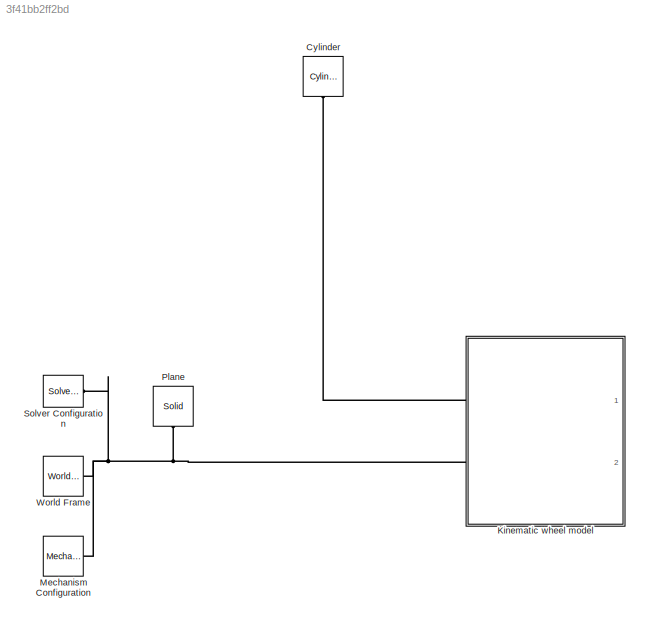
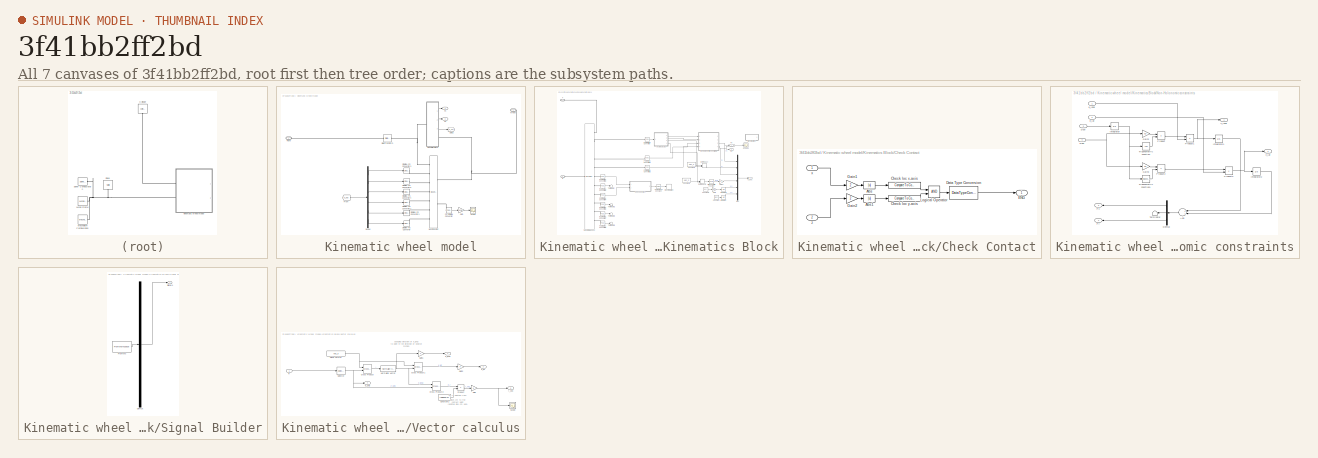
[diagram: thumbnail index - all 7 canvases of the model, root first then tree order]
MODEL slx_3f41bb2ff2bd
KIND model
CONFIG AbsTol = auto
CONFIG EnableMultiTasking = off
CONFIG FixedStep = auto
CONFIG MaxStep = auto
CONFIG MinStep = auto
CONFIG RelTol = 1e-3
CONFIG SampleTimeConstraint = Unconstrained
CONFIG Solver = VariableStepAuto
CONFIG SolverName = VariableStepAuto
CONFIG StartTime = 0.0
CONFIG StopTime = 10.0
BLOCK [Reference] Cylinder  REF=Parts_Lib/Cylinder
  Ports = [0, 0, 0, 0, 0, 1]
  SourceBlock = Parts_Lib/Cylinder
  SourceType = Solid Cylinder with Markings
  Tag = CustomStyle
BLOCK [SubSystem] Kinematic wheel model
  Ports = [0, 2, 0, 0, 0, 2]
  RequestExecContextInheritance = off
  Variant = off
BLOCK [Reference] Kinematic wheel model/Bushing Joint  REF=sm_lib/Joints/Bushing Joint
  Ports = [0, 0, 0, 0, 0, 7, 2]
  SourceBlock = sm_lib/Joints/Bushing Joint
  SourceProductBaseCode = MS
  SourceProductName = Simscape Multibody
  SourceType = Bushing Joint
BLOCK [Demux] Kinematic wheel model/Demux
  DisplayOption = bar
  Outputs = 6
  Ports = [1, 6]
BLOCK [From] Kinematic wheel model/From
  GotoTag = K_out
  TagVisibility = global
BLOCK [Gain] Kinematic wheel model/Gain
  Gain = 180/pi
  OutDataTypeStr = Inherit: Inherit via internal rule
  ParamDataTypeStr = Inherit: Inherit via internal rule
  SaturateOnIntegerOverflow = off
BLOCK [Goto] Kinematic wheel model/Goto2
  GotoTag = K_out
  TagVisibility = global
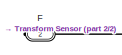
[diagram: Kinematic wheel model/Kinematics Block - part 1/2, top left region]
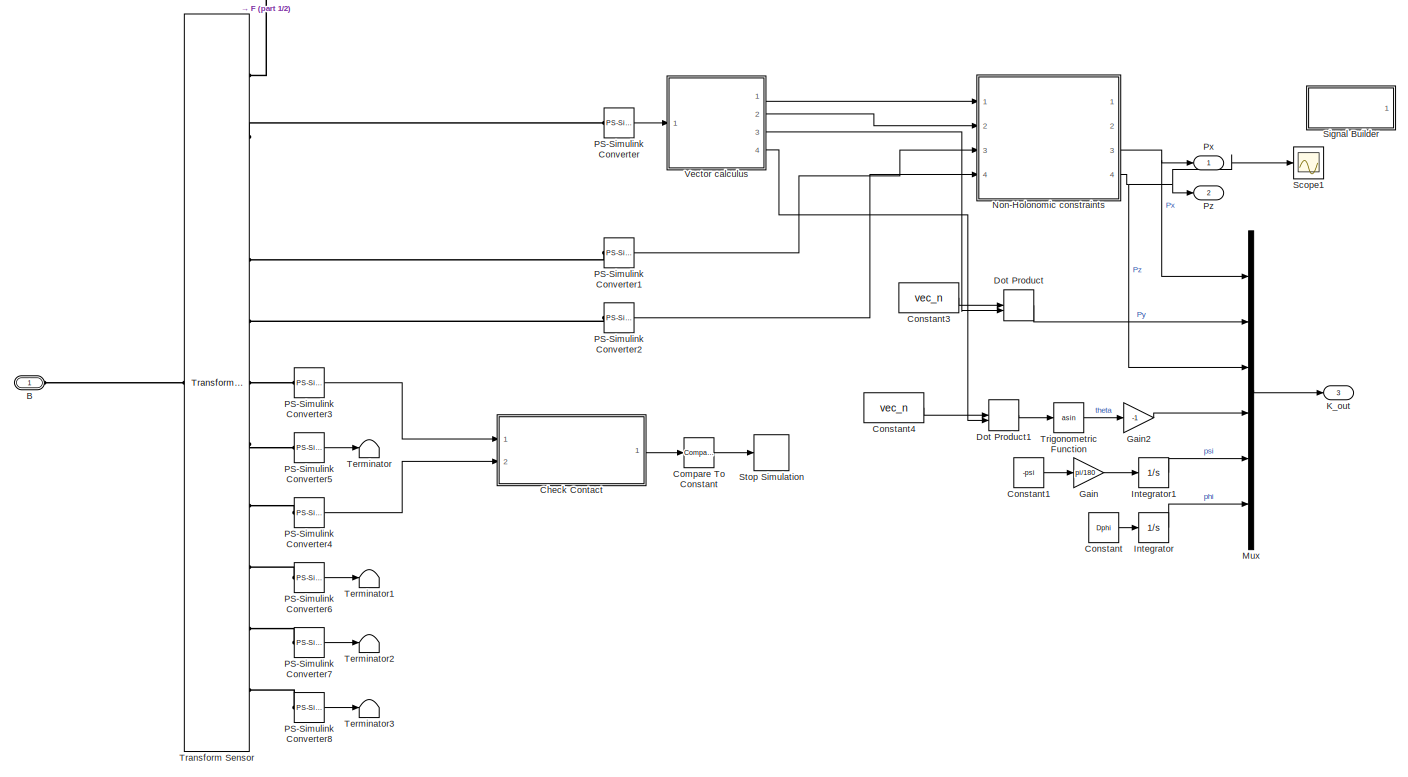
[diagram: Kinematic wheel model/Kinematics Block - part 2/2, most of the canvas]
BLOCK [SubSystem] Kinematic wheel model/Kinematics Block
  Ports = [0, 3, 0, 0, 0, 1, 1]
  RequestExecContextInheritance = off
  Variant = off
BLOCK [PMIOPort] Kinematic wheel model/Kinematics Block/B
  Port = 1
  Side = Left
BLOCK [SubSystem] Kinematic wheel model/Kinematics Block/Check Contact
  Ports = [2, 1]
  RequestExecContextInheritance = off
  Variant = off
BLOCK [Abs] Kinematic wheel model/Kinematics Block/Check Contact/Abs
  SaturateOnIntegerOverflow = off
  ZeroCross = off
BLOCK [Abs] Kinematic wheel model/Kinematics Block/Check Contact/Abs1
  SaturateOnIntegerOverflow = off
  ZeroCross = off
BLOCK [Reference] Kinematic wheel model/Kinematics Block/Check Contact/Check loc x-axis  REF=simulink/Logic and Bit
Operations/Compare
To Constant
  Ports = [1, 1]
  SourceBlock = simulink/Logic and Bit\nOperations/Compare\nTo Constant
  SourceProductBaseCode = SL
  SourceProductName = Simulink
  SourceType = Compare To Constant
BLOCK [Reference] Kinematic wheel model/Kinematics Block/Check Contact/Check loc y-axis  REF=simulink/Logic and Bit
Operations/Compare
To Constant
  Ports = [1, 1]
  SourceBlock = simulink/Logic and Bit\nOperations/Compare\nTo Constant
  SourceProductBaseCode = SL
  SourceProductName = Simulink
  SourceType = Compare To Constant
BLOCK [DataTypeConversion] Kinematic wheel model/Kinematics Block/Check Contact/Data Type Conversion
  RndMeth = Floor
  SaturateOnIntegerOverflow = off
BLOCK [Outport] Kinematic wheel model/Kinematics Block/Check Contact/ENG
  IconDisplay = Port number
BLOCK [Gain] Kinematic wheel model/Kinematics Block/Check Contact/Gain1
  Gain = 2
  OutDataTypeStr = Inherit: Inherit via internal rule
  ParamDataTypeStr = Inherit: Inherit via internal rule
  SaturateOnIntegerOverflow = off
BLOCK [Gain] Kinematic wheel model/Kinematics Block/Check Contact/Gain2
  Gain = 2
  OutDataTypeStr = Inherit: Inherit via internal rule
  ParamDataTypeStr = Inherit: Inherit via internal rule
  SaturateOnIntegerOverflow = off
BLOCK [Logic] Kinematic wheel model/Kinematics Block/Check Contact/Logical Operator
  AllPortsSameDT = off
  OutDataTypeStr = boolean
  Ports = [2, 1]
BLOCK [Inport] Kinematic wheel model/Kinematics Block/Check Contact/x
  IconDisplay = Port number
BLOCK [Inport] Kinematic wheel model/Kinematics Block/Check Contact/z
  IconDisplay = Port number
  Port = 2
BLOCK [Reference] Kinematic wheel model/Kinematics Block/Compare To Constant  REF=simulink/Logic and Bit
Operations/Compare
To Constant
  Ports = [1, 1]
  SourceBlock = simulink/Logic and Bit\nOperations/Compare\nTo Constant
  SourceProductBaseCode = SL
  SourceProductName = Simulink
  SourceType = Compare To Constant
BLOCK [Constant] Kinematic wheel model/Kinematics Block/Constant
  Value = Dphi
BLOCK [Constant] Kinematic wheel model/Kinematics Block/Constant1
  Value = -psi
BLOCK [Constant] Kinematic wheel model/Kinematics Block/Constant3
  Value = vec_n
BLOCK [Constant] Kinematic wheel model/Kinematics Block/Constant4
  Value = vec_n
BLOCK [DotProduct] Kinematic wheel model/Kinematics Block/Dot Product
  OutDataTypeStr = Inherit: Inherit via internal rule
BLOCK [DotProduct] Kinematic wheel model/Kinematics Block/Dot Product1
  OutDataTypeStr = Inherit: Inherit via internal rule
BLOCK [PMIOPort] Kinematic wheel model/Kinematics Block/F
  Port = 2
  Side = Right
BLOCK [Gain] Kinematic wheel model/Kinematics Block/Gain
  Gain = pi/180
  OutDataTypeStr = Inherit: Inherit via internal rule
  ParamDataTypeStr = Inherit: Inherit via internal rule
  SaturateOnIntegerOverflow = off
BLOCK [Gain] Kinematic wheel model/Kinematics Block/Gain2
  Gain = -1
  OutDataTypeStr = Inherit: Inherit via internal rule
  ParamDataTypeStr = Inherit: Inherit via internal rule
  SaturateOnIntegerOverflow = off
BLOCK [Integrator] Kinematic wheel model/Kinematics Block/Integrator
  Ports = [1, 1]
BLOCK [Integrator] Kinematic wheel model/Kinematics Block/Integrator1
  Ports = [1, 1]
BLOCK [Outport] Kinematic wheel model/Kinematics Block/K_out
  IconDisplay = Port number
  Port = 3
BLOCK [Mux] Kinematic wheel model/Kinematics Block/Mux
  DisplayOption = bar
  Inputs = 6
  Ports = [6, 1]
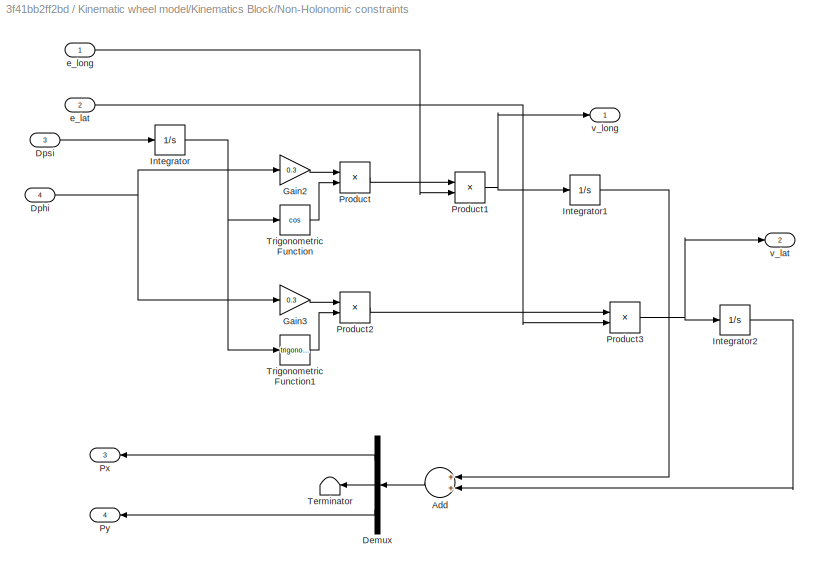
BLOCK [SubSystem] Kinematic wheel model/Kinematics Block/Non-Holonomic constraints
  Ports = [4, 4]
  RequestExecContextInheritance = off
  Variant = off
BLOCK [Sum] Kinematic wheel model/Kinematics Block/Non-Holonomic constraints/Add
  InputSameDT = off
  Inputs = 2
  OutDataTypeStr = Inherit: Inherit via internal rule
  Ports = [2, 1]
  SaturateOnIntegerOverflow = off
BLOCK [Demux] Kinematic wheel model/Kinematics Block/Non-Holonomic constraints/Demux
  DisplayOption = bar
  Outputs = 3
  Ports = [1, 3]
BLOCK [Inport] Kinematic wheel model/Kinematics Block/Non-Holonomic constraints/Dphi
  IconDisplay = Port number
  Port = 4
BLOCK [Inport] Kinematic wheel model/Kinematics Block/Non-Holonomic constraints/Dpsi
  IconDisplay = Port number
  Port = 3
BLOCK [Gain] Kinematic wheel model/Kinematics Block/Non-Holonomic constraints/Gain2
  Gain = 0.3
  OutDataTypeStr = Inherit: Inherit via internal rule
  ParamDataTypeStr = Inherit: Inherit via internal rule
  SaturateOnIntegerOverflow = off
BLOCK [Gain] Kinematic wheel model/Kinematics Block/Non-Holonomic constraints/Gain3
  Gain = 0.3
  OutDataTypeStr = Inherit: Inherit via internal rule
  ParamDataTypeStr = Inherit: Inherit via internal rule
  SaturateOnIntegerOverflow = off
BLOCK [Integrator] Kinematic wheel model/Kinematics Block/Non-Holonomic constraints/Integrator
  Ports = [1, 1]
BLOCK [Integrator] Kinematic wheel model/Kinematics Block/Non-Holonomic constraints/Integrator1
  Ports = [1, 1]
BLOCK [Integrator] Kinematic wheel model/Kinematics Block/Non-Holonomic constraints/Integrator2
  Ports = [1, 1]
BLOCK [Product] Kinematic wheel model/Kinematics Block/Non-Holonomic constraints/Product
  InputSameDT = off
  OutDataTypeStr = Inherit: Inherit via internal rule
  Ports = [2, 1]
  RndMeth = Floor
  SaturateOnIntegerOverflow = off
BLOCK [Product] Kinematic wheel model/Kinematics Block/Non-Holonomic constraints/Product1
  InputSameDT = off
  OutDataTypeStr = Inherit: Inherit via internal rule
  Ports = [2, 1]
  RndMeth = Floor
  SaturateOnIntegerOverflow = off
BLOCK [Product] Kinematic wheel model/Kinematics Block/Non-Holonomic constraints/Product2
  InputSameDT = off
  OutDataTypeStr = Inherit: Inherit via internal rule
  Ports = [2, 1]
  RndMeth = Floor
  SaturateOnIntegerOverflow = off
BLOCK [Product] Kinematic wheel model/Kinematics Block/Non-Holonomic constraints/Product3
  InputSameDT = off
  OutDataTypeStr = Inherit: Inherit via internal rule
  Ports = [2, 1]
  RndMeth = Floor
  SaturateOnIntegerOverflow = off
BLOCK [Outport] Kinematic wheel model/Kinematics Block/Non-Holonomic constraints/Px
  IconDisplay = Port number
  Port = 3
BLOCK [Outport] Kinematic wheel model/Kinematics Block/Non-Holonomic constraints/Py
  IconDisplay = Port number
  Port = 4
BLOCK [Terminator] Kinematic wheel model/Kinematics Block/Non-Holonomic constraints/Terminator
BLOCK [Trigonometry] Kinematic wheel model/Kinematics Block/Non-Holonomic constraints/Trigonometric Function
  Operator = cos
  Ports = [1, 1]
BLOCK [Trigonometry] Kinematic wheel model/Kinematics Block/Non-Holonomic constraints/Trigonometric Function1
  Ports = [1, 1]
BLOCK [Inport] Kinematic wheel model/Kinematics Block/Non-Holonomic constraints/e_lat
  IconDisplay = Port number
  Port = 2
BLOCK [Inport] Kinematic wheel model/Kinematics Block/Non-Holonomic constraints/e_long
  IconDisplay = Port number
BLOCK [Outport] Kinematic wheel model/Kinematics Block/Non-Holonomic constraints/v_lat
  IconDisplay = Port number
  Port = 2
BLOCK [Outport] Kinematic wheel model/Kinematics Block/Non-Holonomic constraints/v_long
  IconDisplay = Port number
BLOCK [Reference] Kinematic wheel model/Kinematics Block/PS-Simulink Converter  REF=nesl_utility/PS-Simulink
Converter
  Ports = [0, 1, 0, 0, 0, 1]
  SourceBlock = nesl_utility/PS-Simulink\nConverter
  SourceProductBaseCode = SS
  SourceProductName = Simscape
  SourceType = PS-Simulink\nConverter
BLOCK [Reference] Kinematic wheel model/Kinematics Block/PS-Simulink Converter1  REF=nesl_utility/PS-Simulink
Converter
  Ports = [0, 1, 0, 0, 0, 1]
  SourceBlock = nesl_utility/PS-Simulink\nConverter
  SourceProductBaseCode = SS
  SourceProductName = Simscape
  SourceType = PS-Simulink\nConverter
BLOCK [Reference] Kinematic wheel model/Kinematics Block/PS-Simulink Converter2  REF=nesl_utility/PS-Simulink
Converter
  Ports = [0, 1, 0, 0, 0, 1]
  SourceBlock = nesl_utility/PS-Simulink\nConverter
  SourceProductBaseCode = SS
  SourceProductName = Simscape
  SourceType = PS-Simulink\nConverter
BLOCK [Reference] Kinematic wheel model/Kinematics Block/PS-Simulink Converter3  REF=nesl_utility/PS-Simulink
Converter
  Ports = [0, 1, 0, 0, 0, 1]
  SourceBlock = nesl_utility/PS-Simulink\nConverter
  SourceProductBaseCode = SS
  SourceProductName = Simscape
  SourceType = PS-Simulink\nConverter
BLOCK [Reference] Kinematic wheel model/Kinematics Block/PS-Simulink Converter4  REF=nesl_utility/PS-Simulink
Converter
  Ports = [0, 1, 0, 0, 0, 1]
  SourceBlock = nesl_utility/PS-Simulink\nConverter
  SourceProductBaseCode = SS
  SourceProductName = Simscape
  SourceType = PS-Simulink\nConverter
BLOCK [Reference] Kinematic wheel model/Kinematics Block/PS-Simulink Converter5  REF=nesl_utility/PS-Simulink
Converter
  Ports = [0, 1, 0, 0, 0, 1]
  SourceBlock = nesl_utility/PS-Simulink\nConverter
  SourceProductBaseCode = SS
  SourceProductName = Simscape
  SourceType = PS-Simulink\nConverter
BLOCK [Reference] Kinematic wheel model/Kinematics Block/PS-Simulink Converter6  REF=nesl_utility/PS-Simulink
Converter
  Ports = [0, 1, 0, 0, 0, 1]
  SourceBlock = nesl_utility/PS-Simulink\nConverter
  SourceProductBaseCode = SS
  SourceProductName = Simscape
  SourceType = PS-Simulink\nConverter
BLOCK [Reference] Kinematic wheel model/Kinematics Block/PS-Simulink Converter7  REF=nesl_utility/PS-Simulink
Converter
  Ports = [0, 1, 0, 0, 0, 1]
  SourceBlock = nesl_utility/PS-Simulink\nConverter
  SourceProductBaseCode = SS
  SourceProductName = Simscape
  SourceType = PS-Simulink\nConverter
BLOCK [Reference] Kinematic wheel model/Kinematics Block/PS-Simulink Converter8  REF=nesl_utility/PS-Simulink
Converter
  Ports = [0, 1, 0, 0, 0, 1]
  SourceBlock = nesl_utility/PS-Simulink\nConverter
  SourceProductBaseCode = SS
  SourceProductName = Simscape
  SourceType = PS-Simulink\nConverter
BLOCK [Outport] Kinematic wheel model/Kinematics Block/Px
  IconDisplay = Port number
BLOCK [Outport] Kinematic wheel model/Kinematics Block/Pz
  IconDisplay = Port number
  Port = 2
BLOCK [Scope] Kinematic wheel model/Kinematics Block/Scope1
  NumInputPorts = 1
  Ports = [1]
  ScopeSpecificationString = Simulink.scopes.TimeScopeBlockCfg('CurrentConfiguration', extmgr.ConfigurationSet(extmgr.Configuration('Core','General UI',true),extmgr.Configuration('Core','Source UI',true),extmgr.Configuration('Sources','WiredSimulink',true,'DataLoggingVariableName','ScopeData3'),extmgr.Configuration('Visuals','Time Domain',true,'SerializedDisplays',{struct('MinYLimReal','-0.57595','MaxYLimReal','5.18359','YLab...<+1391ch>
BLOCK [SubSystem] Kinematic wheel model/Kinematics Block/Signal Builder
  ClipboardFcn = sigbuilder_block('clipboard');
  CloseFcn = sigbuilder_block('close');
  Commented = on
  ContinueFcn = sigbuilder_block('continue');
  CopyFcn = sigbuilder_block('copy');
  DeleteFcn = sigbuilder_block('delete');
  LoadFcn = sigbuilder_block('load');
  MaskHideContents = on
  ModelCloseFcn = sigbuilder_block('modelClose');
  NameChangeFcn = sigbuilder_block('namechange');
  OpenFcn = sigbuilder_block('open',[437.6 199.2 550.4 400 ]);
  PauseFcn = sigbuilder_block('pause');
  Ports = [0, 1]
  PreSaveFcn = sigbuilder_block('preSave');
  RequestExecContextInheritance = off
  StartFcn = sigbuilder_block('start');
  StopFcn = sigbuilder_block('stop');
  Tag = STV Subsys
  Variant = off
BLOCK [Demux] Kinematic wheel model/Kinematics Block/Signal Builder/Demux
  Outputs = 1
  Ports = [1, 1]
  Tag = STV Demux
BLOCK [FromWorkspace] Kinematic wheel model/Kinematics Block/Signal Builder/FromWs
  SampleTime = 0
  Tag = STV FromWs
  VariableName = tuvar
  ZeroCross = on
BLOCK [Outport] Kinematic wheel model/Kinematics Block/Signal Builder/Signal 1
  IconDisplay = Port number
  Tag = STV Outport
BLOCK [Stop] Kinematic wheel model/Kinematics Block/Stop Simulation
BLOCK [Terminator] Kinematic wheel model/Kinematics Block/Terminator
BLOCK [Terminator] Kinematic wheel model/Kinematics Block/Terminator1
BLOCK [Terminator] Kinematic wheel model/Kinematics Block/Terminator2
BLOCK [Terminator] Kinematic wheel model/Kinematics Block/Terminator3
BLOCK [Reference] Kinematic wheel model/Kinematics Block/Transform Sensor  REF=sm_lib/Frames and
Transforms/Transform
Sensor
  Ports = [0, 0, 0, 0, 0, 1, 11]
  SourceBlock = sm_lib/Frames and\nTransforms/Transform\nSensor
  SourceProductBaseCode = MS
  SourceProductName = Simscape Multibody
  SourceType = Transform\nSensor
BLOCK [Trigonometry] Kinematic wheel model/Kinematics Block/Trigonometric Function
  Operator = asin
  Ports = [1, 1]
BLOCK [SubSystem] Kinematic wheel model/Kinematics Block/Vector calculus
  Ports = [1, 4]
  RequestExecContextInheritance = off
  Variant = off
BLOCK [Constant] Kinematic wheel model/Kinematics Block/Vector calculus/Constant2
  Value = radiusRW
BLOCK [Reference] Kinematic wheel model/Kinematics Block/Vector calculus/Cross Product  REF=Contact_Forces_Lib/Math/Cross
Product
  Ports = [2, 1]
  SourceBlock = Contact_Forces_Lib/Math/Cross\nProduct
  SourceType = SubSystem
BLOCK [Reference] Kinematic wheel model/Kinematics Block/Vector calculus/Cross Product1  REF=Contact_Forces_Lib/Math/Cross
Product
  Ports = [2, 1]
  SourceBlock = Contact_Forces_Lib/Math/Cross\nProduct
  SourceType = SubSystem
BLOCK [Reference] Kinematic wheel model/Kinematics Block/Vector calculus/Cross Product2  REF=Contact_Forces_Lib/Math/Cross
Product
  Ports = [2, 1]
  SourceBlock = Contact_Forces_Lib/Math/Cross\nProduct
  SourceType = SubSystem
BLOCK [Gain] Kinematic wheel model/Kinematics Block/Vector calculus/Gain
  OutDataTypeStr = Inherit: Inherit via internal rule
  ParamDataTypeStr = Inherit: Inherit via internal rule
  SaturateOnIntegerOverflow = off
BLOCK [Gain] Kinematic wheel model/Kinematics Block/Vector calculus/Gain1
  Gain = -1
  OutDataTypeStr = Inherit: Inherit via internal rule
  ParamDataTypeStr = Inherit: Inherit via internal rule
  SaturateOnIntegerOverflow = off
BLOCK [Gain] Kinematic wheel model/Kinematics Block/Vector calculus/Gain2
  OutDataTypeStr = Inherit: Inherit via internal rule
  ParamDataTypeStr = Inherit: Inherit via internal rule
  SaturateOnIntegerOverflow = off
BLOCK [Reference] Kinematic wheel model/Kinematics Block/Vector calculus/Normalize Vector  REF=vrlib/Utilities/Normalize Vector
  Ports = [1, 1]
  SourceBlock = vrlib/Utilities/Normalize Vector
  SourceProductBaseCode = VR
  SourceProductName = Simulink 3D Animation
  SourceType = Normalize Vector
BLOCK [Constant] Kinematic wheel model/Kinematics Block/Vector calculus/Plane normal
  Value = vec_n
BLOCK [Product] Kinematic wheel model/Kinematics Block/Vector calculus/Product
  InputSameDT = off
  OutDataTypeStr = Inherit: Inherit via internal rule
  Ports = [2, 1]
  RndMeth = Floor
  SaturateOnIntegerOverflow = off
BLOCK [Inport] Kinematic wheel model/Kinematics Block/Vector calculus/R
  IconDisplay = Port number
BLOCK [Scope] Kinematic wheel model/Kinematics Block/Vector calculus/Scope
  NumInputPorts = 1
  Ports = [1]
  ScopeSpecificationString = Simulink.scopes.TimeScopeBlockCfg('CurrentConfiguration', extmgr.ConfigurationSet(extmgr.Configuration('Core','General UI',true),extmgr.Configuration('Core','Source UI',true),extmgr.Configuration('Sources','WiredSimulink',true,'DataLoggingVariableName','ScopeData1'),extmgr.Configuration('Visuals','Time Domain',true,'SerializedDisplays',{struct('MinYLimReal','-0.0375','MaxYLimReal','0.3375','YLabel...<+1377ch>
BLOCK [Selector] Kinematic wheel model/Kinematics Block/Vector calculus/Selector
  IndexOptions = Index vector (dialog),Index vector (dialog)
  Indices = [1:3],3
  InputPortWidth = 3
  NumberOfDimensions = 2
  OutputSizes = 1,1
  Ports = [1, 1]
BLOCK [Outport] Kinematic wheel model/Kinematics Block/Vector calculus/e_axis
  IconDisplay = Port number
  Port = 4
BLOCK [Outport] Kinematic wheel model/Kinematics Block/Vector calculus/e_lat
  IconDisplay = Port number
  Port = 2
BLOCK [Outport] Kinematic wheel model/Kinematics Block/Vector calculus/e_long
  IconDisplay = Port number
BLOCK [Outport] Kinematic wheel model/Kinematics Block/Vector calculus/r_vec
  IconDisplay = Port number
  Port = 3
BLOCK [Reference] Kinematic wheel model/PS-Simulink Converter  REF=nesl_utility/PS-Simulink
Converter
  Ports = [0, 1, 0, 0, 0, 1]
  SourceBlock = nesl_utility/PS-Simulink\nConverter
  SourceProductBaseCode = SS
  SourceProductName = Simscape
  SourceType = PS-Simulink\nConverter
BLOCK [PMIOPort] Kinematic wheel model/Plane
  Port = 2
  Side = Left
BLOCK [Outport] Kinematic wheel model/Px
  IconDisplay = Port number
BLOCK [Outport] Kinematic wheel model/Pz
  IconDisplay = Port number
  Port = 2
BLOCK [Reference] Kinematic wheel model/Rigid Transform  REF=sm_lib/Frames and
Transforms/Rigid
Transform
  Ports = [0, 0, 0, 0, 0, 1, 1]
  SourceBlock = sm_lib/Frames and\nTransforms/Rigid\nTransform
  SourceProductBaseCode = MS
  SourceProductName = Simscape Multibody
  SourceType = Rigid\nTransform
BLOCK [Scope] Kinematic wheel model/Scope
  NumInputPorts = 1
  Ports = [1]
  ScopeSpecificationString = Simulink.scopes.TimeScopeBlockCfg('CurrentConfiguration', extmgr.ConfigurationSet(extmgr.Configuration('Core','General UI',true),extmgr.Configuration('Core','Source UI',true),extmgr.Configuration('Sources','WiredSimulink',true,'DataLoggingVariableName','ScopeData2'),extmgr.Configuration('Visuals','Time Domain',true,'SerializedDisplays',{struct('MinYLimReal','-0.0000009','MaxYLimReal','0.0000023','...<+1408ch>
BLOCK [Reference] Kinematic wheel model/Simulink-PS Converter  REF=nesl_utility/Simulink-PS
Converter
  Ports = [1, 0, 0, 0, 0, 0, 1]
  SourceBlock = nesl_utility/Simulink-PS\nConverter
  SourceProductBaseCode = SS
  SourceProductName = Simscape
  SourceType = Simulink-PS\nConverter
BLOCK [Reference] Kinematic wheel model/Simulink-PS Converter1  REF=nesl_utility/Simulink-PS
Converter
  Ports = [1, 0, 0, 0, 0, 0, 1]
  SourceBlock = nesl_utility/Simulink-PS\nConverter
  SourceProductBaseCode = SS
  SourceProductName = Simscape
  SourceType = Simulink-PS\nConverter
BLOCK [Reference] Kinematic wheel model/Simulink-PS Converter2  REF=nesl_utility/Simulink-PS
Converter
  Ports = [1, 0, 0, 0, 0, 0, 1]
  SourceBlock = nesl_utility/Simulink-PS\nConverter
  SourceProductBaseCode = SS
  SourceProductName = Simscape
  SourceType = Simulink-PS\nConverter
BLOCK [Reference] Kinematic wheel model/Simulink-PS Converter3  REF=nesl_utility/Simulink-PS
Converter
  Ports = [1, 0, 0, 0, 0, 0, 1]
  SourceBlock = nesl_utility/Simulink-PS\nConverter
  SourceProductBaseCode = SS
  SourceProductName = Simscape
  SourceType = Simulink-PS\nConverter
BLOCK [Reference] Kinematic wheel model/Simulink-PS Converter4  REF=nesl_utility/Simulink-PS
Converter
  Ports = [1, 0, 0, 0, 0, 0, 1]
  SourceBlock = nesl_utility/Simulink-PS\nConverter
  SourceProductBaseCode = SS
  SourceProductName = Simscape
  SourceType = Simulink-PS\nConverter
BLOCK [Reference] Kinematic wheel model/Simulink-PS Converter5  REF=nesl_utility/Simulink-PS
Converter
  Ports = [1, 0, 0, 0, 0, 0, 1]
  SourceBlock = nesl_utility/Simulink-PS\nConverter
  SourceProductBaseCode = SS
  SourceProductName = Simscape
  SourceType = Simulink-PS\nConverter
BLOCK [PMIOPort] Kinematic wheel model/Wheel
  Port = 1
  Side = Left
BLOCK [Reference] Mechanism Configuration  REF=sm_lib/Utilities/Mechanism
Configuration
  Ports = [0, 0, 0, 0, 0, 0, 1]
  SourceBlock = sm_lib/Utilities/Mechanism\nConfiguration
  SourceProductBaseCode = MS
  SourceProductName = Simscape Multibody
  SourceType = Mechanism\nConfiguration
BLOCK [Reference] Plane  REF=sm_lib/Body Elements/Solid
  Ports = [0, 0, 0, 0, 0, 0, 1]
  SourceBlock = sm_lib/Body Elements/Solid
  SourceProductBaseCode = MS
  SourceProductName = Simscape Multibody
  SourceType = Solid
BLOCK [Reference] Solver Configuration  REF=nesl_utility/Solver
Configuration
  Ports = [0, 0, 0, 0, 0, 0, 1]
  SourceBlock = nesl_utility/Solver\nConfiguration
  SourceProductBaseCode = SS
  SourceProductName = Simscape
  SourceType = Solver\nConfiguration
BLOCK [Reference] World Frame  REF=sm_lib/Frames and
Transforms/World Frame
  Ports = [0, 0, 0, 0, 0, 0, 1]
  SourceBlock = sm_lib/Frames and\nTransforms/World Frame
  SourceProductBaseCode = MS
  SourceProductName = Simscape Multibody
  SourceType = World Frame
ANNOTATION Kinematic wheel model/Kinematics Block/Vector calculus: Changing direction of e_long to point in the direction of positve motion
ANNOTATION Kinematic wheel model/Kinematics Block/Vector calculus: e_r is pointing from disk's cm to the contact point (positive disk cm axis)
LINE Kinematic wheel model/Demux:1 -> Kinematic wheel model/Simulink-PS Converter3:1
LINE Kinematic wheel model/Demux:2 -> Kinematic wheel model/Simulink-PS Converter5:1
LINE Kinematic wheel model/Demux:3 -> Kinematic wheel model/Simulink-PS Converter4:1
LINE Kinematic wheel model/Demux:4 -> Kinematic wheel model/Simulink-PS Converter2:1
LINE Kinematic wheel model/Demux:5 -> Kinematic wheel model/Simulink-PS Converter1:1
LINE Kinematic wheel model/Demux:6 -> Kinematic wheel model/Simulink-PS Converter:1
LINE Kinematic wheel model/From:1 -> Kinematic wheel model/Demux:1
LINE Kinematic wheel model/Gain:1 -> Kinematic wheel model/Scope:1
LINE Kinematic wheel model/Kinematics Block/Check Contact/Abs1:1 -> Kinematic wheel model/Kinematics Block/Check Contact/Check loc y-axis:1
LINE Kinematic wheel model/Kinematics Block/Check Contact/Abs:1 -> Kinematic wheel model/Kinematics Block/Check Contact/Check loc x-axis:1
LINE Kinematic wheel model/Kinematics Block/Check Contact/Check loc x-axis:1 -> Kinematic wheel model/Kinematics Block/Check Contact/Logical Operator:1
LINE Kinematic wheel model/Kinematics Block/Check Contact/Check loc y-axis:1 -> Kinematic wheel model/Kinematics Block/Check Contact/Logical Operator:2
LINE Kinematic wheel model/Kinematics Block/Check Contact/Data Type Conversion:1 -> Kinematic wheel model/Kinematics Block/Check Contact/ENG:1
LINE Kinematic wheel model/Kinematics Block/Check Contact/Gain1:1 -> Kinematic wheel model/Kinematics Block/Check Contact/Abs:1
LINE Kinematic wheel model/Kinematics Block/Check Contact/Gain2:1 -> Kinematic wheel model/Kinematics Block/Check Contact/Abs1:1
LINE Kinematic wheel model/Kinematics Block/Check Contact/Logical Operator:1 -> Kinematic wheel model/Kinematics Block/Check Contact/Data Type Conversion:1
LINE Kinematic wheel model/Kinematics Block/Check Contact/x:1 -> Kinematic wheel model/Kinematics Block/Check Contact/Gain1:1
LINE Kinematic wheel model/Kinematics Block/Check Contact/z:1 -> Kinematic wheel model/Kinematics Block/Check Contact/Gain2:1
LINE Kinematic wheel model/Kinematics Block/Check Contact:1 -> Kinematic wheel model/Kinematics Block/Compare To Constant:1
LINE Kinematic wheel model/Kinematics Block/Compare To Constant:1 -> Kinematic wheel model/Kinematics Block/Stop Simulation:1
LINE Kinematic wheel model/Kinematics Block/Constant1:1 -> Kinematic wheel model/Kinematics Block/Gain:1
LINE Kinematic wheel model/Kinematics Block/Constant3:1 -> Kinematic wheel model/Kinematics Block/Dot Product:1
LINE Kinematic wheel model/Kinematics Block/Constant4:1 -> Kinematic wheel model/Kinematics Block/Dot Product1:1
LINE Kinematic wheel model/Kinematics Block/Constant:1 -> Kinematic wheel model/Kinematics Block/Integrator:1
LINE Kinematic wheel model/Kinematics Block/Dot Product1:1 -> Kinematic wheel model/Kinematics Block/Trigonometric Function:1
LINE Kinematic wheel model/Kinematics Block/Dot Product:1 -> Kinematic wheel model/Kinematics Block/Mux:2
LINE Kinematic wheel model/Kinematics Block/Gain2:1 -> Kinematic wheel model/Kinematics Block/Mux:4
LINE Kinematic wheel model/Kinematics Block/Gain:1 -> Kinematic wheel model/Kinematics Block/Integrator1:1
LINE Kinematic wheel model/Kinematics Block/Integrator1:1 -> Kinematic wheel model/Kinematics Block/Mux:5
LINE Kinematic wheel model/Kinematics Block/Integrator:1 -> Kinematic wheel model/Kinematics Block/Mux:6
LINE Kinematic wheel model/Kinematics Block/Mux:1 -> Kinematic wheel model/Kinematics Block/K_out:1
LINE Kinematic wheel model/Kinematics Block/Non-Holonomic constraints/Add:1 -> Kinematic wheel model/Kinematics Block/Non-Holonomic constraints/Demux:1
LINE Kinematic wheel model/Kinematics Block/Non-Holonomic constraints/Demux:1 -> Kinematic wheel model/Kinematics Block/Non-Holonomic constraints/Px:1
LINE Kinematic wheel model/Kinematics Block/Non-Holonomic constraints/Demux:2 -> Kinematic wheel model/Kinematics Block/Non-Holonomic constraints/Terminator:1
LINE Kinematic wheel model/Kinematics Block/Non-Holonomic constraints/Demux:3 -> Kinematic wheel model/Kinematics Block/Non-Holonomic constraints/Py:1
NET Kinematic wheel model/Kinematics Block/Non-Holonomic constraints/Dphi:1 -> Kinematic wheel model/Kinematics Block/Non-Holonomic constraints/Gain2:1, Kinematic wheel model/Kinematics Block/Non-Holonomic constraints/Gain3:1
LINE Kinematic wheel model/Kinematics Block/Non-Holonomic constraints/Dpsi:1 -> Kinematic wheel model/Kinematics Block/Non-Holonomic constraints/Integrator:1
LINE Kinematic wheel model/Kinematics Block/Non-Holonomic constraints/Gain2:1 -> Kinematic wheel model/Kinematics Block/Non-Holonomic constraints/Product:1
LINE Kinematic wheel model/Kinematics Block/Non-Holonomic constraints/Gain3:1 -> Kinematic wheel model/Kinematics Block/Non-Holonomic constraints/Product2:1
LINE Kinematic wheel model/Kinematics Block/Non-Holonomic constraints/Integrator1:1 -> Kinematic wheel model/Kinematics Block/Non-Holonomic constraints/Add:1
LINE Kinematic wheel model/Kinematics Block/Non-Holonomic constraints/Integrator2:1 -> Kinematic wheel model/Kinematics Block/Non-Holonomic constraints/Add:2
NET Kinematic wheel model/Kinematics Block/Non-Holonomic constraints/Integrator:1 -> Kinematic wheel model/Kinematics Block/Non-Holonomic constraints/Trigonometric Function1:1, Kinematic wheel model/Kinematics Block/Non-Holonomic constraints/Trigonometric Function:1
NET Kinematic wheel model/Kinematics Block/Non-Holonomic constraints/Product1:1 -> Kinematic wheel model/Kinematics Block/Non-Holonomic constraints/Integrator1:1, Kinematic wheel model/Kinematics Block/Non-Holonomic constraints/v_long:1
LINE Kinematic wheel model/Kinematics Block/Non-Holonomic constraints/Product2:1 -> Kinematic wheel model/Kinematics Block/Non-Holonomic constraints/Product3:1
NET Kinematic wheel model/Kinematics Block/Non-Holonomic constraints/Product3:1 -> Kinematic wheel model/Kinematics Block/Non-Holonomic constraints/Integrator2:1, Kinematic wheel model/Kinematics Block/Non-Holonomic constraints/v_lat:1
LINE Kinematic wheel model/Kinematics Block/Non-Holonomic constraints/Product:1 -> Kinematic wheel model/Kinematics Block/Non-Holonomic constraints/Product1:1
LINE Kinematic wheel model/Kinematics Block/Non-Holonomic constraints/Trigonometric Function1:1 -> Kinematic wheel model/Kinematics Block/Non-Holonomic constraints/Product2:2
LINE Kinematic wheel model/Kinematics Block/Non-Holonomic constraints/Trigonometric Function:1 -> Kinematic wheel model/Kinematics Block/Non-Holonomic constraints/Product:2
LINE Kinematic wheel model/Kinematics Block/Non-Holonomic constraints/e_lat:1 -> Kinematic wheel model/Kinematics Block/Non-Holonomic constraints/Product3:2
LINE Kinematic wheel model/Kinematics Block/Non-Holonomic constraints/e_long:1 -> Kinematic wheel model/Kinematics Block/Non-Holonomic constraints/Product1:2
NET Kinematic wheel model/Kinematics Block/Non-Holonomic constraints:3 -> Kinematic wheel model/Kinematics Block/Mux:1, Kinematic wheel model/Kinematics Block/Px:1
NET Kinematic wheel model/Kinematics Block/Non-Holonomic constraints:4 -> Kinematic wheel model/Kinematics Block/Mux:3, Kinematic wheel model/Kinematics Block/Pz:1, Kinematic wheel model/Kinematics Block/Scope1:1
LINE Kinematic wheel model/Kinematics Block/PS-Simulink Converter1:1 -> Kinematic wheel model/Kinematics Block/Non-Holonomic constraints:3
LINE Kinematic wheel model/Kinematics Block/PS-Simulink Converter2:1 -> Kinematic wheel model/Kinematics Block/Non-Holonomic constraints:4
LINE Kinematic wheel model/Kinematics Block/PS-Simulink Converter3:1 -> Kinematic wheel model/Kinematics Block/Check Contact:1
LINE Kinematic wheel model/Kinematics Block/PS-Simulink Converter4:1 -> Kinematic wheel model/Kinematics Block/Check Contact:2
LINE Kinematic wheel model/Kinematics Block/PS-Simulink Converter5:1 -> Kinematic wheel model/Kinematics Block/Terminator:1
LINE Kinematic wheel model/Kinematics Block/PS-Simulink Converter6:1 -> Kinematic wheel model/Kinematics Block/Terminator1:1
LINE Kinematic wheel model/Kinematics Block/PS-Simulink Converter7:1 -> Kinematic wheel model/Kinematics Block/Terminator2:1
LINE Kinematic wheel model/Kinematics Block/PS-Simulink Converter8:1 -> Kinematic wheel model/Kinematics Block/Terminator3:1
LINE Kinematic wheel model/Kinematics Block/PS-Simulink Converter:1 -> Kinematic wheel model/Kinematics Block/Vector calculus:1
LINE Kinematic wheel model/Kinematics Block/Trigonometric Function:1 -> Kinematic wheel model/Kinematics Block/Gain2:1
LINE Kinematic wheel model/Kinematics Block/Vector calculus/Constant2:1 -> Kinematic wheel model/Kinematics Block/Vector calculus/Product:2
LINE Kinematic wheel model/Kinematics Block/Vector calculus/Cross Product1:1 -> Kinematic wheel model/Kinematics Block/Vector calculus/Gain2:1
LINE Kinematic wheel model/Kinematics Block/Vector calculus/Cross Product2:1 -> Kinematic wheel model/Kinematics Block/Vector calculus/Product:1
LINE Kinematic wheel model/Kinematics Block/Vector calculus/Cross Product:1 -> Kinematic wheel model/Kinematics Block/Vector calculus/Normalize Vector:1
LINE Kinematic wheel model/Kinematics Block/Vector calculus/Gain1:1 -> Kinematic wheel model/Kinematics Block/Vector calculus/e_long:1
LINE Kinematic wheel model/Kinematics Block/Vector calculus/Gain2:1 -> Kinematic wheel model/Kinematics Block/Vector calculus/e_lat:1
NET Kinematic wheel model/Kinematics Block/Vector calculus/Gain:1 -> Kinematic wheel model/Kinematics Block/Vector calculus/Scope:1, Kinematic wheel model/Kinematics Block/Vector calculus/r_vec:1
NET Kinematic wheel model/Kinematics Block/Vector calculus/Normalize Vector:1 -> Kinematic wheel model/Kinematics Block/Vector calculus/Cross Product1:2, Kinematic wheel model/Kinematics Block/Vector calculus/Cross Product2:1, Kinematic wheel model/Kinematics Block/Vector calculus/Gain1:1
NET Kinematic wheel model/Kinematics Block/Vector calculus/Plane normal:1 -> Kinematic wheel model/Kinematics Block/Vector calculus/Cross Product1:1, Kinematic wheel model/Kinematics Block/Vector calculus/Cross Product:1
LINE Kinematic wheel model/Kinematics Block/Vector calculus/Product:1 -> Kinematic wheel model/Kinematics Block/Vector calculus/Gain:1
LINE Kinematic wheel model/Kinematics Block/Vector calculus/R:1 -> Kinematic wheel model/Kinematics Block/Vector calculus/Selector:1
NET Kinematic wheel model/Kinematics Block/Vector calculus/Selector:1 -> Kinematic wheel model/Kinematics Block/Vector calculus/Cross Product2:2, Kinematic wheel model/Kinematics Block/Vector calculus/Cross Product:2, Kinematic wheel model/Kinematics Block/Vector calculus/e_axis:1
LINE Kinematic wheel model/Kinematics Block/Vector calculus:1 -> Kinematic wheel model/Kinematics Block/Non-Holonomic constraints:1
LINE Kinematic wheel model/Kinematics Block/Vector calculus:2 -> Kinematic wheel model/Kinematics Block/Non-Holonomic constraints:2
LINE Kinematic wheel model/Kinematics Block/Vector calculus:3 -> Kinematic wheel model/Kinematics Block/Dot Product:2
LINE Kinematic wheel model/Kinematics Block/Vector calculus:4 -> Kinematic wheel model/Kinematics Block/Dot Product1:2
LINE Kinematic wheel model/Kinematics Block:1 -> Kinematic wheel model/Px:1
LINE Kinematic wheel model/Kinematics Block:2 -> Kinematic wheel model/Pz:1
LINE Kinematic wheel model/Kinematics Block:3 -> Kinematic wheel model/Goto2:1
LINE Kinematic wheel model/PS-Simulink Converter:1 -> Kinematic wheel model/Gain:1
PLINE Cylinder:LConn1 -- Kinematic wheel model:LConn1
PNET net1: Kinematic wheel model/Bushing Joint:LConn1 -- Kinematic wheel model/Kinematics Block:LConn1 -- Kinematic wheel model/Rigid Transform:RConn1
PLINE Kinematic wheel model/Bushing Joint:LConn2 -- Kinematic wheel model/Simulink-PS Converter3:RConn1
PLINE Kinematic wheel model/Bushing Joint:LConn3 -- Kinematic wheel model/Simulink-PS Converter5:RConn1
PLINE Kinematic wheel model/Bushing Joint:LConn4 -- Kinematic wheel model/Simulink-PS Converter4:RConn1
PLINE Kinematic wheel model/Bushing Joint:LConn5 -- Kinematic wheel model/Simulink-PS Converter2:RConn1
PLINE Kinematic wheel model/Bushing Joint:LConn6 -- Kinematic wheel model/Simulink-PS Converter1:RConn1
PLINE Kinematic wheel model/Bushing Joint:LConn7 -- Kinematic wheel model/Simulink-PS Converter:RConn1
PNET net2: Kinematic wheel model/Bushing Joint:RConn1 -- Kinematic wheel model/Kinematics Block:RConn1 -- Kinematic wheel model/Wheel:RConn1
PLINE Kinematic wheel model/Bushing Joint:RConn2 -- Kinematic wheel model/PS-Simulink Converter:LConn1
PLINE Kinematic wheel model/Kinematics Block/B:RConn1 -- Kinematic wheel model/Kinematics Block/Transform Sensor:LConn1
PLINE Kinematic wheel model/Kinematics Block/F:RConn1 -- Kinematic wheel model/Kinematics Block/Transform Sensor:RConn1
PLINE Kinematic wheel model/Kinematics Block/PS-Simulink Converter1:LConn1 -- Kinematic wheel model/Kinematics Block/Transform Sensor:RConn4
PLINE Kinematic wheel model/Kinematics Block/PS-Simulink Converter2:LConn1 -- Kinematic wheel model/Kinematics Block/Transform Sensor:RConn5
PLINE Kinematic wheel model/Kinematics Block/PS-Simulink Converter3:LConn1 -- Kinematic wheel model/Kinematics Block/Transform Sensor:RConn6
PLINE Kinematic wheel model/Kinematics Block/PS-Simulink Converter4:LConn1 -- Kinematic wheel model/Kinematics Block/Transform Sensor:RConn8
PLINE Kinematic wheel model/Kinematics Block/PS-Simulink Converter5:LConn1 -- Kinematic wheel model/Kinematics Block/Transform Sensor:RConn7
PLINE Kinematic wheel model/Kinematics Block/PS-Simulink Converter6:LConn1 -- Kinematic wheel model/Kinematics Block/Transform Sensor:RConn9
PLINE Kinematic wheel model/Kinematics Block/PS-Simulink Converter7:LConn1 -- Kinematic wheel model/Kinematics Block/Transform Sensor:RConn10
PLINE Kinematic wheel model/Kinematics Block/PS-Simulink Converter8:LConn1 -- Kinematic wheel model/Kinematics Block/Transform Sensor:RConn11
PLINE Kinematic wheel model/Kinematics Block/PS-Simulink Converter:LConn1 -- Kinematic wheel model/Kinematics Block/Transform Sensor:RConn2
PLINE Kinematic wheel model/Plane:RConn1 -- Kinematic wheel model/Rigid Transform:LConn1
PNET net3: Kinematic wheel model:LConn2 -- Mechanism Configuration:RConn1 -- Plane:RConn1 -- Solver Configuration:RConn1 -- World Frame:RConn1
note: NET lines group one-source signal fan-out (src -> all destinations, sorted); 1:1 wires keep LINE; PNET lines group multi-terminal physical nets as a canonical sorted terminal list (undirected conserving connections); 2-terminal nets keep the pairwise PLINE form
